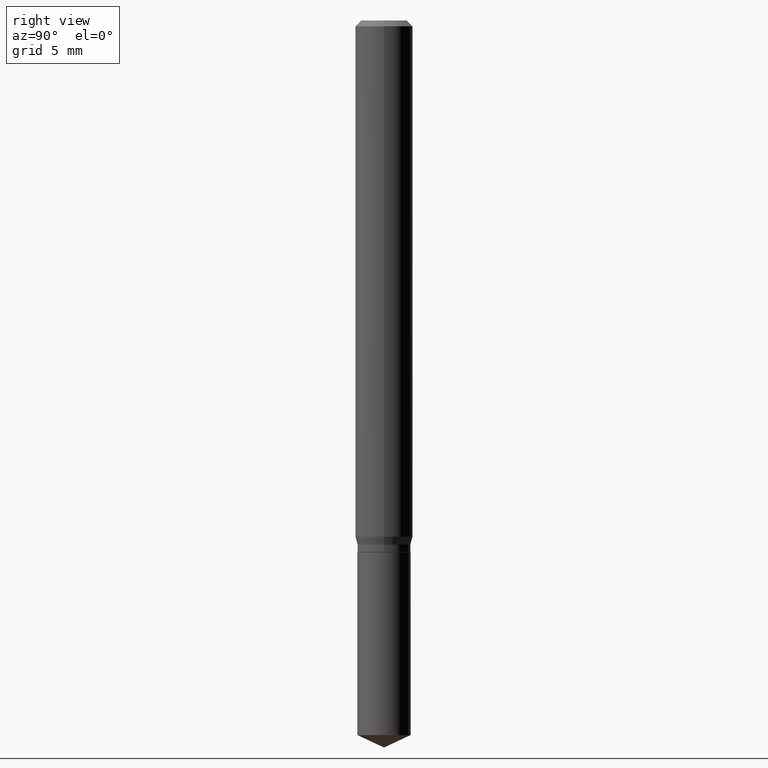
[diagram: clean part render]
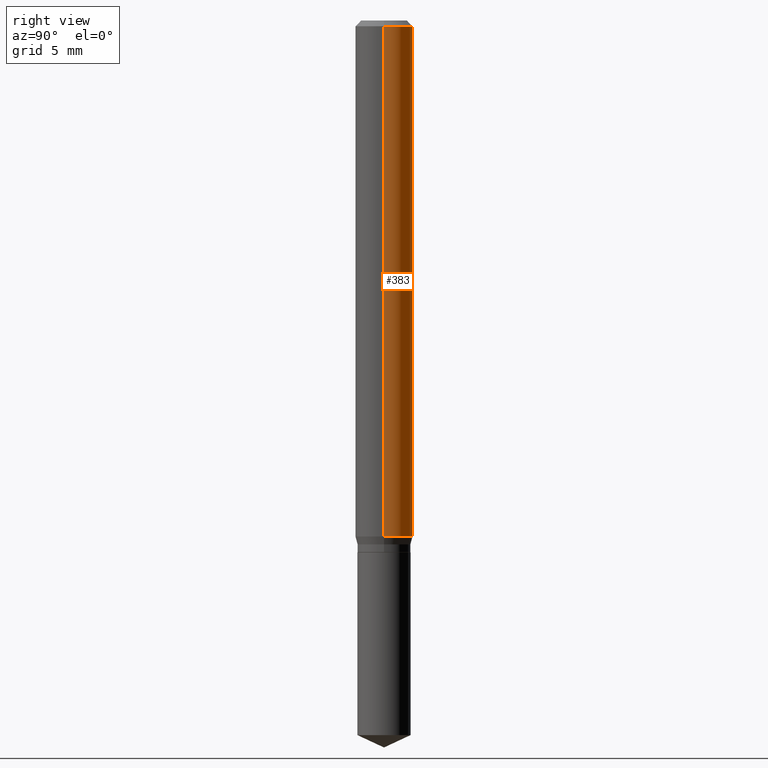
[diagram: same view with one face highlighted and labeled with its STEP entity id]
A machine part, right view. The second image highlights one B-rep face of the part: STEP entity #383.
In plain terms, the highlighted cylindrical surface (edge-blend (fillet) strip) has radius 1.4999 mm, axis along (-0, 0, 1).
Its self-contained STEP definition (entity closure, byte-faithful):
#5 = CARTESIAN_POINT ( 'NONE',  ( 0.000000000000000000, 0.000000000000000000, 0.000000000000000000 ) ) ;
#10 = EDGE_LOOP ( 'NONE', ( #20, #67, #137, #292 ) ) ;
#20 = ORIENTED_EDGE ( 'NONE', *, *, #115, .T. ) ;
#55 = EDGE_CURVE ( 'NONE', #373, #351, #440, .T. ) ;
#67 = ORIENTED_EDGE ( 'NONE', *, *, #55, .T. ) ;
#80 = DIRECTION ( 'NONE',  ( -2.445468806185136597E-29, 3.491481338843145583E-15, 1.000000000000000000 ) ) ;
#82 = VECTOR ( 'NONE', #322, 39.37007874015748143 ) ;
#99 = VERTEX_POINT ( 'NONE', #287 ) ;
#115 = EDGE_CURVE ( 'NONE', #99, #373, #172, .T. ) ;
#116 = CARTESIAN_POINT ( 'NONE',  ( -0.05904999999999999832, -1.454783638536150538E-15, -0.01181000000000007218 ) ) ;
#122 = VECTOR ( 'NONE', #231, 39.37007874015748143 ) ;
#124 = VERTEX_POINT ( 'NONE', #258 ) ;
#137 = ORIENTED_EDGE ( 'NONE', *, *, #324, .F. ) ;
#168 = AXIS2_PLACEMENT_3D ( 'NONE', #5, #80, #312 ) ;
#172 = CIRCLE ( 'NONE', #385, 0.05905000000000013016 ) ;
#187 = CARTESIAN_POINT ( 'NONE',  ( 0.05905000000000006771, -4.123439461173745257E-16, 2.879382386107503723E-30 ) ) ;
#189 = CIRCLE ( 'NONE', #480, 0.05904999999999999832 ) ;
#197 = DIRECTION ( 'NONE',  ( -2.445468806185136597E-29, 3.491481338843145583E-15, 1.000000000000000000 ) ) ;
#213 = DIRECTION ( 'NONE',  ( -2.445468806185136597E-29, 3.491481338843145583E-15, 1.000000000000000000 ) ) ;
#227 = CYLINDRICAL_SURFACE ( 'NONE', #168, 0.05905000000000006771 ) ;
#231 = DIRECTION ( 'NONE',  ( -2.445468806185136877E-29, 3.491481338843145188E-15, 1.000000000000000000 ) ) ;
#258 = CARTESIAN_POINT ( 'NONE',  ( 0.05904999999999999832, -4.535783407291118600E-16, -0.01181000000000007218 ) ) ;
#282 = CARTESIAN_POINT ( 'NONE',  ( -0.05905000000000006771, 4.195754854663396409E-16, -2.904631170795525045E-30 ) ) ;
#287 = CARTESIAN_POINT ( 'NONE',  ( 0.05905000000000013016, -4.119827799510619225E-15, -1.061865578987074787 ) ) ;
#292 = ORIENTED_EDGE ( 'NONE', *, *, #333, .F. ) ;
#296 = DIRECTION ( 'NONE',  ( 1.000000000000000000, -6.982962677686265133E-15, 0.000000000000000000 ) ) ;
#312 = DIRECTION ( 'NONE',  ( 1.000000000000000000, -6.982962677686266711E-15, 4.876176775795936353E-29 ) ) ;
#322 = DIRECTION ( 'NONE',  ( -2.445468806185136877E-29, 3.491481338843145188E-15, 1.000000000000000000 ) ) ;
#324 = EDGE_CURVE ( 'NONE', #124, #351, #189, .T. ) ;
#333 = EDGE_CURVE ( 'NONE', #99, #124, #465, .T. ) ;
#351 = VERTEX_POINT ( 'NONE', #116 ) ;
#357 = CARTESIAN_POINT ( 'NONE',  ( -0.05905000000000013016, -3.287908367926904418E-15, -1.061865578987074787 ) ) ;
#373 = VERTEX_POINT ( 'NONE', #357 ) ;
#383 = ADVANCED_FACE ( 'NONE', ( #384 ), #227, .T. ) ;
#384 = FACE_OUTER_BOUND ( 'NONE', #10, .T. ) ;
#385 = AXIS2_PLACEMENT_3D ( 'NONE', #478, #213, #296 ) ;
#440 = LINE ( 'NONE', #282, #82 ) ;
#453 = CARTESIAN_POINT ( 'NONE',  ( 2.888098660104664204E-31, -4.123439461173780263E-17, -0.01181000000000007218 ) ) ;
#456 = DIRECTION ( 'NONE',  ( 1.000000000000000000, -6.982962677686266711E-15, 0.000000000000000000 ) ) ;
#465 = LINE ( 'NONE', #187, #122 ) ;
#478 = CARTESIAN_POINT ( 'NONE',  ( 2.596759149774611245E-29, -3.707483853393244305E-15, -1.061865578987074787 ) ) ;
#480 = AXIS2_PLACEMENT_3D ( 'NONE', #453, #197, #456 ) ;